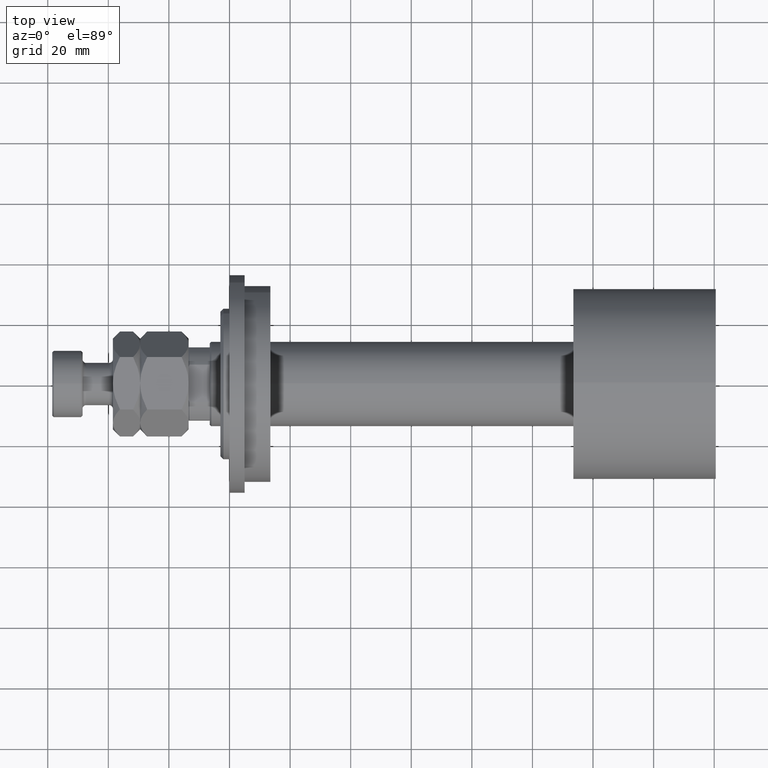
[diagram: clean part render]
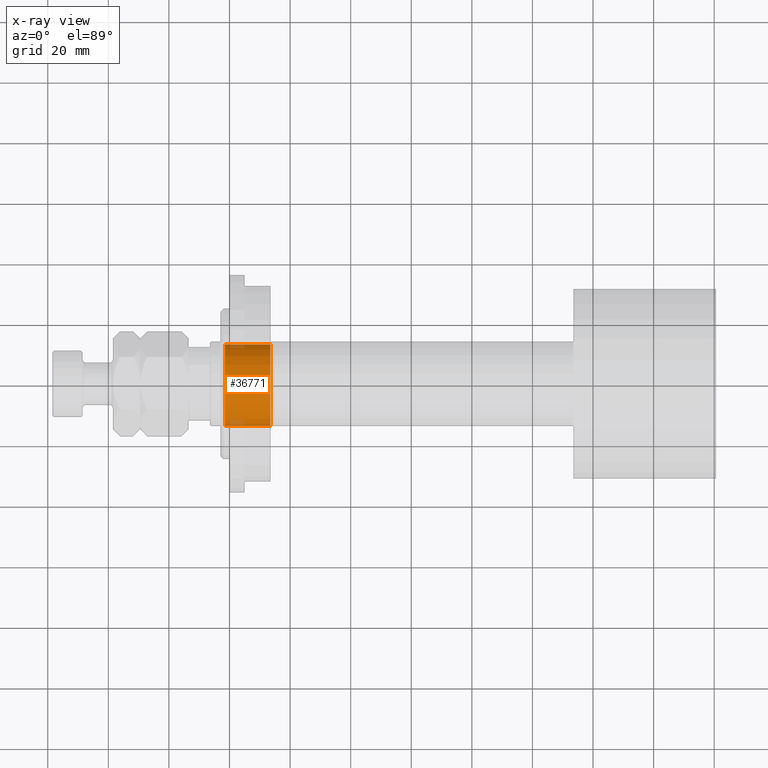
[diagram: x-ray — body ghosted, one internal face saturated and labeled with its STEP entity id]
A machine part, top view, then the same camera in x-ray: the body is ghosted and one INTERNAL B-rep face — a face not visible from any outside direction — is saturated and labeled: STEP entity #36771.
In plain terms, the highlighted cylindrical surface (partial cylindrical patch) has radius 14 mm, axis along (-1, 0, 0).
Its self-contained STEP definition (entity closure, byte-faithful):
#1103 = DIRECTION ( 'NONE',  ( 1.000000000000000000, -0.000000000000000000, -0.000000000000000000 ) ) ;
#1845 = VERTEX_POINT ( 'NONE', #25277 ) ;
#2240 = EDGE_LOOP ( 'NONE', ( #36192, #44710, #27796, #2364 ) ) ;
#2364 = ORIENTED_EDGE ( 'NONE', *, *, #3433, .F. ) ;
#3433 = EDGE_CURVE ( 'NONE', #1845, #3604, #44261, .T. ) ;
#3604 = VERTEX_POINT ( 'NONE', #39588 ) ;
#5764 = FACE_OUTER_BOUND ( 'NONE', #2240, .T. ) ;
#7246 = CIRCLE ( 'NONE', #16795, 14.00000000000000178 ) ;
#8041 = VECTOR ( 'NONE', #1103, 1000.000000000000000 ) ;
#11909 = DIRECTION ( 'NONE',  ( 0.000000000000000000, 0.000000000000000000, -1.000000000000000000 ) ) ;
#12508 = CARTESIAN_POINT ( 'NONE',  ( -13.50000000000000178, 1.714505518806294441E-15, 14.00000000000000178 ) ) ;
#12635 = CARTESIAN_POINT ( 'NONE',  ( -13.50000000000000178, 0.000000000000000000, 0.000000000000000000 ) ) ;
#12788 = CARTESIAN_POINT ( 'NONE',  ( -13.50000000000000178, 1.714505518806294441E-15, 14.00000000000000178 ) ) ;
#15574 = VERTEX_POINT ( 'NONE', #39688 ) ;
#16517 = VECTOR ( 'NONE', #26754, 1000.000000000000000 ) ;
#16795 = AXIS2_PLACEMENT_3D ( 'NONE', #43656, #28942, #11909 ) ;
#18169 = AXIS2_PLACEMENT_3D ( 'NONE', #34572, #41461, #37559 ) ;
#19761 = DIRECTION ( 'NONE',  ( 0.000000000000000000, 0.000000000000000000, -1.000000000000000000 ) ) ;
#22994 = VERTEX_POINT ( 'NONE', #12788 ) ;
#25277 = CARTESIAN_POINT ( 'NONE',  ( -13.50000000000000178, 0.000000000000000000, -14.00000000000000178 ) ) ;
#26754 = DIRECTION ( 'NONE',  ( 1.000000000000000000, -0.000000000000000000, -0.000000000000000000 ) ) ;
#27796 = ORIENTED_EDGE ( 'NONE', *, *, #32554, .T. ) ;
#28942 = DIRECTION ( 'NONE',  ( 1.000000000000000000, 0.000000000000000000, 0.000000000000000000 ) ) ;
#29190 = EDGE_CURVE ( 'NONE', #22994, #1845, #31366, .T. ) ;
#29671 = CYLINDRICAL_SURFACE ( 'NONE', #39674, 14.00000000000000178 ) ;
#31366 = CIRCLE ( 'NONE', #18169, 14.00000000000000178 ) ;
#32554 = EDGE_CURVE ( 'NONE', #15574, #3604, #7246, .T. ) ;
#34370 = EDGE_CURVE ( 'NONE', #22994, #15574, #44041, .T. ) ;
#34572 = CARTESIAN_POINT ( 'NONE',  ( -13.50000000000000178, 0.000000000000000000, 0.000000000000000000 ) ) ;
#36192 = ORIENTED_EDGE ( 'NONE', *, *, #29190, .F. ) ;
#36771 = ADVANCED_FACE ( 'NONE', ( #5764 ), #29671, .F. ) ;
#37359 = CARTESIAN_POINT ( 'NONE',  ( -13.50000000000000178, 0.000000000000000000, -14.00000000000000178 ) ) ;
#37559 = DIRECTION ( 'NONE',  ( 0.000000000000000000, 0.000000000000000000, -1.000000000000000000 ) ) ;
#39588 = CARTESIAN_POINT ( 'NONE',  ( 1.499999999999999556, 0.000000000000000000, -14.00000000000000178 ) ) ;
#39674 = AXIS2_PLACEMENT_3D ( 'NONE', #12635, #40476, #19761 ) ;
#39688 = CARTESIAN_POINT ( 'NONE',  ( 1.499999999999999556, 1.714505518806294441E-15, 14.00000000000000178 ) ) ;
#40476 = DIRECTION ( 'NONE',  ( 1.000000000000000000, -0.000000000000000000, -0.000000000000000000 ) ) ;
#41461 = DIRECTION ( 'NONE',  ( 1.000000000000000000, 0.000000000000000000, 0.000000000000000000 ) ) ;
#43656 = CARTESIAN_POINT ( 'NONE',  ( 1.499999999999999556, 0.000000000000000000, 0.000000000000000000 ) ) ;
#44041 = LINE ( 'NONE', #12508, #8041 ) ;
#44261 = LINE ( 'NONE', #37359, #16517 ) ;
#44710 = ORIENTED_EDGE ( 'NONE', *, *, #34370, .T. ) ;